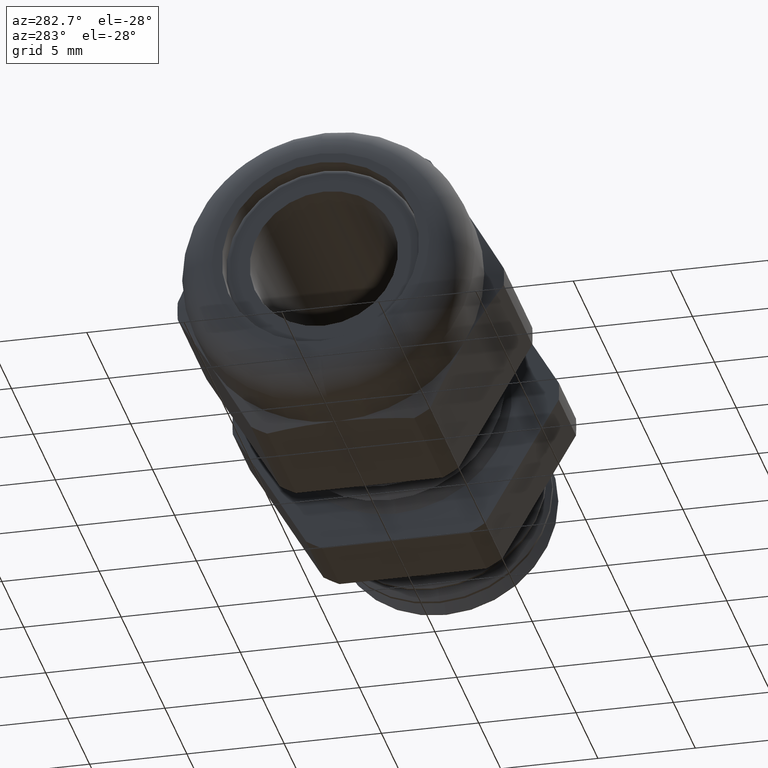
[diagram: clean part render]
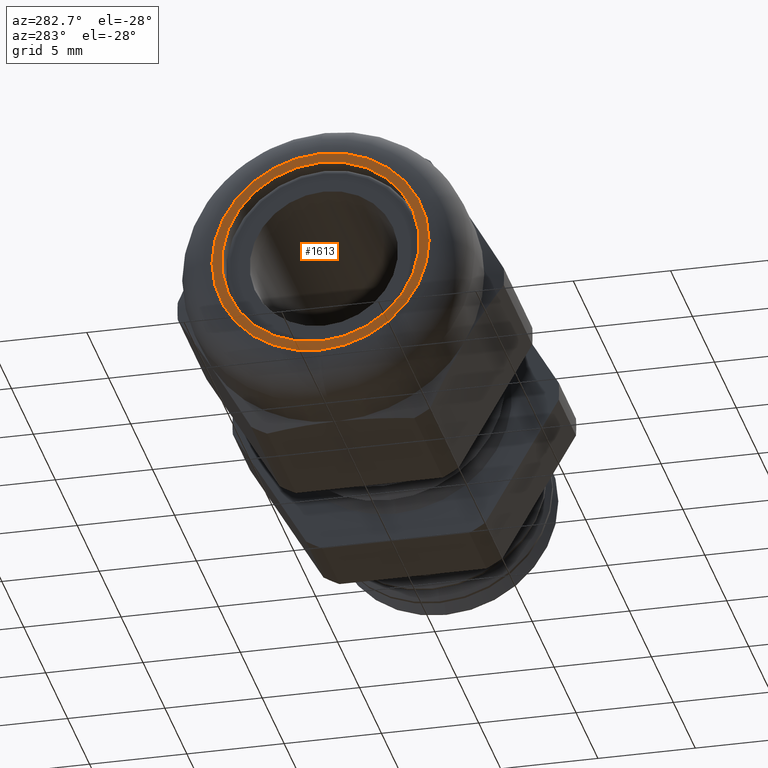
[diagram: same view with one face highlighted and labeled with its STEP entity id]
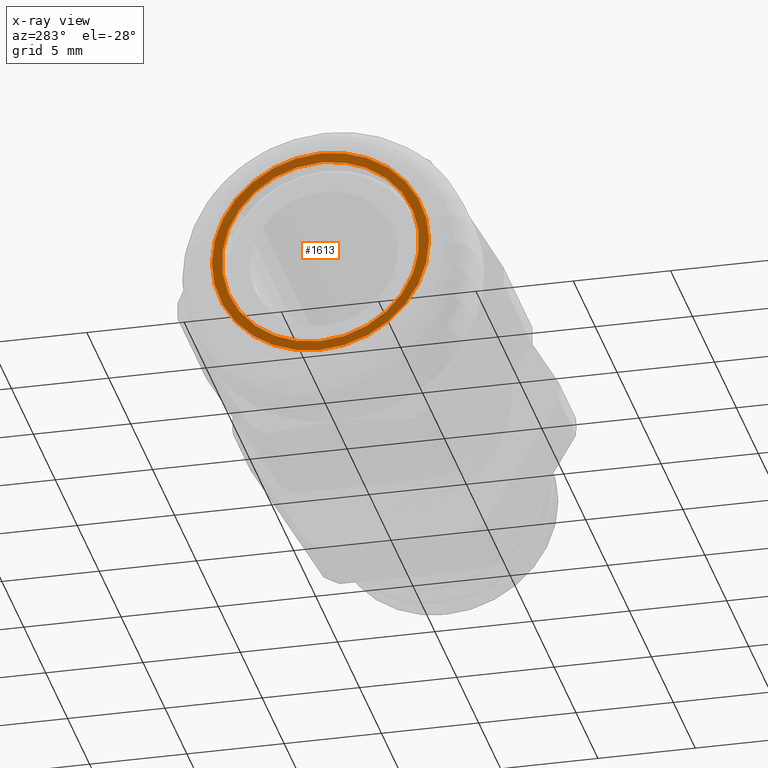
[diagram: x-ray of the same camera — body ghosted, the highlighted face saturated]
A machine part, auxiliary view. The second image highlights one B-rep face of the part: STEP entity #1613.
The next image is the same camera in x-ray: the body ghosted, the highlighted face saturated — about 0% of this face is hidden behind the body in this view.
In plain terms, the highlighted planar face has unit normal (1, 0, 0).
Its self-contained STEP definition (entity closure, byte-faithful):
#705 = DIRECTION ( 'NONE',  ( 0.0000000000000000000, 0.0000000000000000000, 1.000000000000000000 ) ) ;
#706 = DIRECTION ( 'NONE',  ( -1.000000000000000000, 0.0000000000000000000, 0.0000000000000000000 ) ) ;
#707 = CARTESIAN_POINT ( 'NONE',  ( -0.8300000000000001800, 0.0000000000000000000, 0.0000000000000000000 ) ) ;
#708 = AXIS2_PLACEMENT_3D ( 'NONE', #707, #706, #705 ) ;
#709 = CIRCLE ( 'NONE', #708, 0.1997500000000000900 ) ;
#1507 = ORIENTED_EDGE ( 'NONE', *, *, #2221, .F. ) ;
#1607 = EDGE_LOOP ( 'NONE', ( #1612, #1618 ) ) ;
#1609 = EDGE_CURVE ( 'NONE', #2020, #2019, #3018, .T. ) ;
#1610 = EDGE_CURVE ( 'NONE', #2011, #2009, #3013, .T. ) ;
#1612 = ORIENTED_EDGE ( 'NONE', *, *, #1609, .T. ) ;
#1613 = ADVANCED_FACE ( 'NONE', ( #3008, #3007 ), #3006, .F. ) ;
#1618 = ORIENTED_EDGE ( 'NONE', *, *, #2018, .T. ) ;
#1621 = ORIENTED_EDGE ( 'NONE', *, *, #1610, .F. ) ;
#1631 = EDGE_LOOP ( 'NONE', ( #1621, #1507 ) ) ;
#2009 = VERTEX_POINT ( 'NONE', #2283 ) ;
#2011 = VERTEX_POINT ( 'NONE', #2282 ) ;
#2018 = EDGE_CURVE ( 'NONE', #2019, #2020, #2324, .T. ) ;
#2019 = VERTEX_POINT ( 'NONE', #2320 ) ;
#2020 = VERTEX_POINT ( 'NONE', #2319 ) ;
#2221 = EDGE_CURVE ( 'NONE', #2009, #2011, #709, .T. ) ;
#2282 = CARTESIAN_POINT ( 'NONE',  ( -0.8300000000000001800, 0.0000000000000000000, 0.1997500000000000900 ) ) ;
#2283 = CARTESIAN_POINT ( 'NONE',  ( -0.8300000000000001800, 2.446231981296839700E-017, -0.1997500000000001500 ) ) ;
#2319 = CARTESIAN_POINT ( 'NONE',  ( -0.8300000000000001800, 0.0000000000000000000, -0.2195999999999996800 ) ) ;
#2320 = CARTESIAN_POINT ( 'NONE',  ( -0.8300000000000001800, 3.151016214206136600E-017, 0.2195999999999996800 ) ) ;
#2321 = DIRECTION ( 'NONE',  ( 0.0000000000000000000, 0.0000000000000000000, -1.000000000000000000 ) ) ;
#2322 = DIRECTION ( 'NONE',  ( -1.000000000000000000, 0.0000000000000000000, 0.0000000000000000000 ) ) ;
#2323 = AXIS2_PLACEMENT_3D ( 'NONE', #2329, #2322, #2321 ) ;
#2324 = CIRCLE ( 'NONE', #2323, 0.2195999999999996800 ) ;
#2329 = CARTESIAN_POINT ( 'NONE',  ( -0.8300000000000001800, 0.0000000000000000000, 0.0000000000000000000 ) ) ;
#3002 = DIRECTION ( 'NONE',  ( 0.0000000000000000000, 0.0000000000000000000, -1.000000000000000000 ) ) ;
#3003 = DIRECTION ( 'NONE',  ( 1.000000000000000000, 0.0000000000000000000, 0.0000000000000000000 ) ) ;
#3004 = CARTESIAN_POINT ( 'NONE',  ( -0.8300000000000001800, 0.2349999999999999600, 0.0000000000000000000 ) ) ;
#3005 = AXIS2_PLACEMENT_3D ( 'NONE', #3004, #3003, #3002 ) ;
#3006 = PLANE ( 'NONE',  #3005 ) ;
#3007 = FACE_BOUND ( 'NONE', #1631, .T. ) ;
#3008 = FACE_OUTER_BOUND ( 'NONE', #1607, .T. ) ;
#3009 = DIRECTION ( 'NONE',  ( 0.0000000000000000000, 0.0000000000000000000, 1.000000000000000000 ) ) ;
#3010 = DIRECTION ( 'NONE',  ( -1.000000000000000000, 0.0000000000000000000, 0.0000000000000000000 ) ) ;
#3011 = CARTESIAN_POINT ( 'NONE',  ( -0.8300000000000001800, 0.0000000000000000000, 0.0000000000000000000 ) ) ;
#3012 = AXIS2_PLACEMENT_3D ( 'NONE', #3011, #3010, #3009 ) ;
#3013 = CIRCLE ( 'NONE', #3012, 0.1997500000000000900 ) ;
#3014 = DIRECTION ( 'NONE',  ( 0.0000000000000000000, 0.0000000000000000000, -1.000000000000000000 ) ) ;
#3015 = DIRECTION ( 'NONE',  ( -1.000000000000000000, 0.0000000000000000000, 0.0000000000000000000 ) ) ;
#3016 = CARTESIAN_POINT ( 'NONE',  ( -0.8300000000000001800, 0.0000000000000000000, 0.0000000000000000000 ) ) ;
#3017 = AXIS2_PLACEMENT_3D ( 'NONE', #3016, #3015, #3014 ) ;
#3018 = CIRCLE ( 'NONE', #3017, 0.2195999999999996800 ) ;